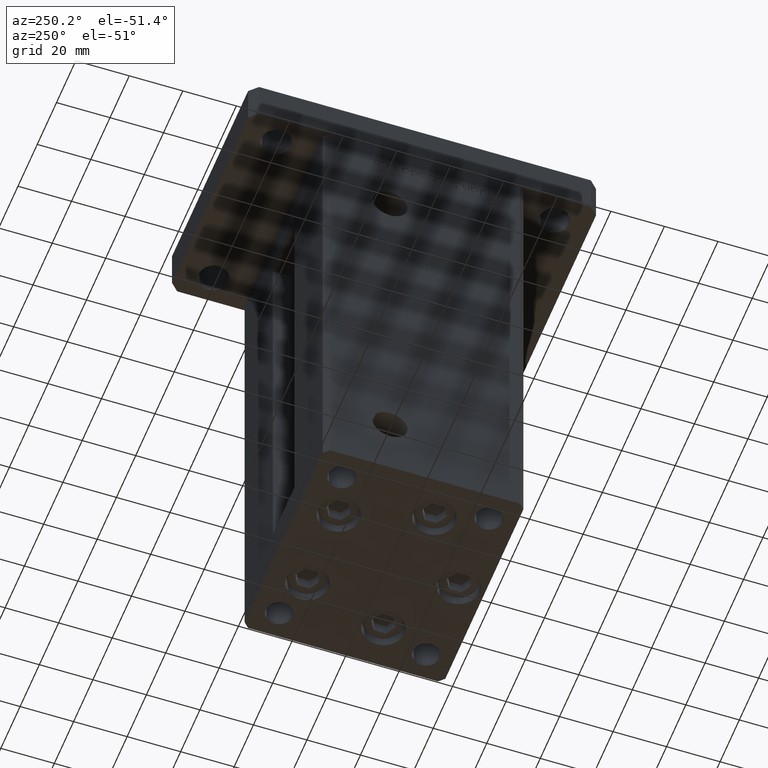
[diagram: clean part render]
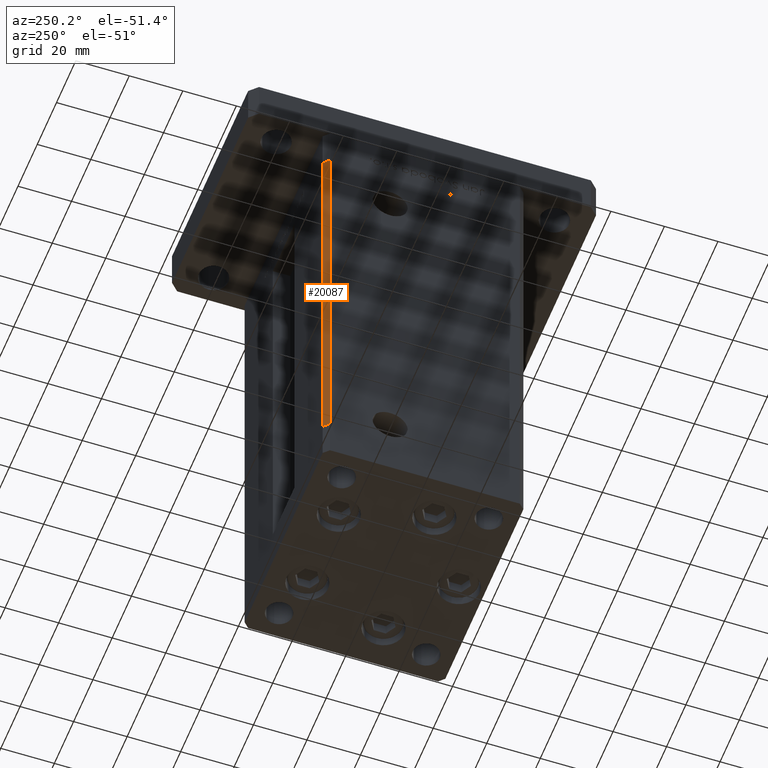
[diagram: same view with one face highlighted and labeled with its STEP entity id]
A machine part, auxiliary view. The second image highlights one B-rep face of the part: STEP entity #20087.
In plain terms, the highlighted planar face has unit normal (0.7071, -0.7071, 0).
Its self-contained STEP definition (entity closure, byte-faithful):
#1657 = CARTESIAN_POINT ( 'NONE',  ( -40.50000000000000000, 37.50000000000000711, 148.5000000000000000 ) ) ;
#2336 = EDGE_CURVE ( 'NONE', #46452, #29313, #13661, .T. ) ;
#5315 = EDGE_LOOP ( 'NONE', ( #43508, #51906, #34903, #31559 ) ) ;
#5565 = FACE_OUTER_BOUND ( 'NONE', #5315, .T. ) ;
#9587 = CARTESIAN_POINT ( 'NONE',  ( -42.50000000000000711, 35.50000000000001421, 148.5000000000000000 ) ) ;
#12132 = CARTESIAN_POINT ( 'NONE',  ( -40.50000000000000000, 37.50000000000000711, 0.000000000000000000 ) ) ;
#13661 = LINE ( 'NONE', #9587, #24442 ) ;
#14960 = EDGE_CURVE ( 'NONE', #38351, #29313, #31802, .T. ) ;
#15657 = EDGE_CURVE ( 'NONE', #24570, #38351, #37897, .T. ) ;
#20087 = ADVANCED_FACE ( 'NONE', ( #5565 ), #30753, .F. ) ;
#20550 = CARTESIAN_POINT ( 'NONE',  ( -40.50000000000000000, 37.50000000000000711, 148.5000000000000000 ) ) ;
#22099 = CARTESIAN_POINT ( 'NONE',  ( -40.50000000000000000, 37.50000000000000711, 148.5000000000000000 ) ) ;
#24442 = VECTOR ( 'NONE', #38581, 1000.000000000000000 ) ;
#24570 = VERTEX_POINT ( 'NONE', #1657 ) ;
#27474 = CARTESIAN_POINT ( 'NONE',  ( -40.50000000000000000, 37.50000000000000711, 0.000000000000000000 ) ) ;
#29313 = VERTEX_POINT ( 'NONE', #52256 ) ;
#29911 = VECTOR ( 'NONE', #33299, 1000.000000000000000 ) ;
#29968 = DIRECTION ( 'NONE',  ( 0.7071067811865451302, -0.7071067811865500152, 0.000000000000000000 ) ) ;
#30139 = LINE ( 'NONE', #46405, #36365 ) ;
#30753 = PLANE ( 'NONE',  #48205 ) ;
#31559 = ORIENTED_EDGE ( 'NONE', *, *, #15657, .T. ) ;
#31802 = LINE ( 'NONE', #27474, #53248 ) ;
#33299 = DIRECTION ( 'NONE',  ( -0.000000000000000000, -0.000000000000000000, -1.000000000000000000 ) ) ;
#34903 = ORIENTED_EDGE ( 'NONE', *, *, #40118, .F. ) ;
#36365 = VECTOR ( 'NONE', #46684, 1000.000000000000114 ) ;
#37897 = LINE ( 'NONE', #20550, #29911 ) ;
#38351 = VERTEX_POINT ( 'NONE', #12132 ) ;
#38581 = DIRECTION ( 'NONE',  ( -0.000000000000000000, -0.000000000000000000, -1.000000000000000000 ) ) ;
#39676 = DIRECTION ( 'NONE',  ( -0.7071067811865500152, -0.7071067811865451302, 0.000000000000000000 ) ) ;
#40118 = EDGE_CURVE ( 'NONE', #24570, #46452, #30139, .T. ) ;
#43508 = ORIENTED_EDGE ( 'NONE', *, *, #14960, .T. ) ;
#46405 = CARTESIAN_POINT ( 'NONE',  ( -40.50000000000000000, 37.50000000000000711, 148.5000000000000000 ) ) ;
#46452 = VERTEX_POINT ( 'NONE', #48987 ) ;
#46684 = DIRECTION ( 'NONE',  ( -0.7071067811865500152, -0.7071067811865451302, 0.000000000000000000 ) ) ;
#46769 = DIRECTION ( 'NONE',  ( 0.7071067811865500152, 0.7071067811865451302, 0.000000000000000000 ) ) ;
#48205 = AXIS2_PLACEMENT_3D ( 'NONE', #22099, #29968, #46769 ) ;
#48987 = CARTESIAN_POINT ( 'NONE',  ( -42.50000000000000711, 35.50000000000001421, 148.5000000000000000 ) ) ;
#51906 = ORIENTED_EDGE ( 'NONE', *, *, #2336, .F. ) ;
#52256 = CARTESIAN_POINT ( 'NONE',  ( -42.50000000000000711, 35.50000000000001421, 0.000000000000000000 ) ) ;
#53248 = VECTOR ( 'NONE', #39676, 1000.000000000000114 ) ;